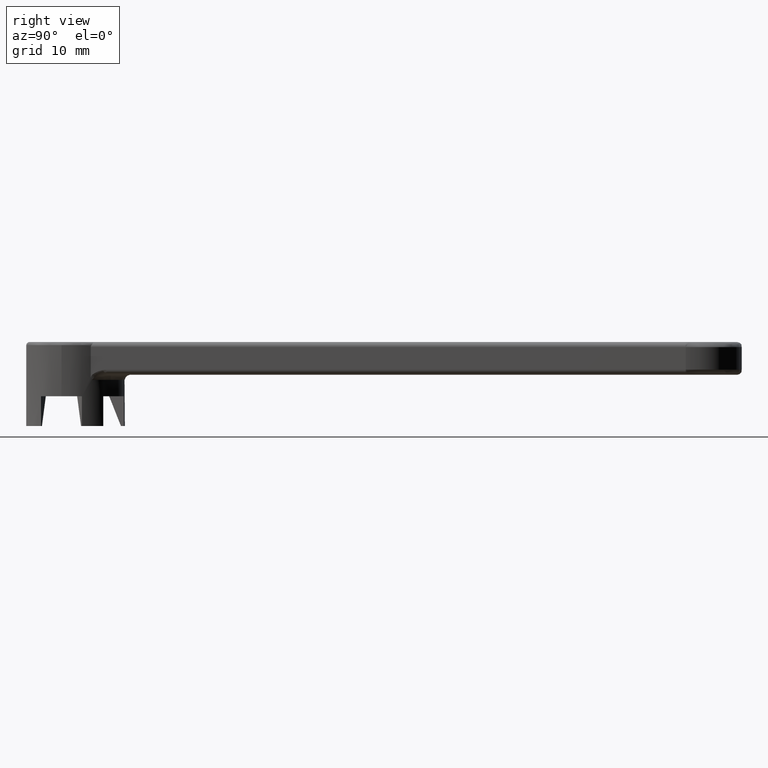
[diagram: clean part render]
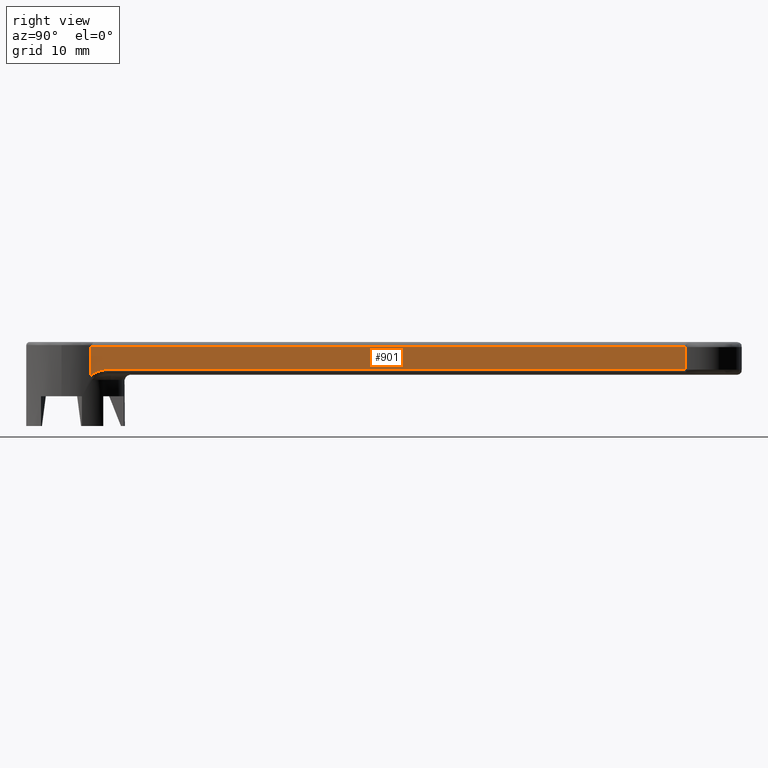
[diagram: same view with one face highlighted and labeled with its STEP entity id]
A machine part, right view. The second image highlights one B-rep face of the part: STEP entity #901.
In plain terms, the highlighted planar face has unit normal (1, -0, 0).
Its self-contained STEP definition (entity closure, byte-faithful):
#42 = AXIS2_PLACEMENT_3D ( 'NONE', #447, #2230, #1518 ) ;
#135 = CARTESIAN_POINT ( 'NONE',  ( 5.499999999999999100, 2.971899750173791600, -3.225746385650876100 ) ) ;
#142 = CARTESIAN_POINT ( 'NONE',  ( 5.499999999999999100, 3.870268057246143600, -2.769236944377345900 ) ) ;
#144 = LINE ( 'NONE', #1535, #1511 ) ;
#237 = LINE ( 'NONE', #1584, #1593 ) ;
#325 = CARTESIAN_POINT ( 'NONE',  ( 5.499999999999999100, 3.132822472471272800, -3.099189326723253300 ) ) ;
#335 = CARTESIAN_POINT ( 'NONE',  ( 5.500000000000000000, 4.313981380150326400, -2.700000620779431600 ) ) ;
#391 = ORIENTED_EDGE ( 'NONE', *, *, #1495, .T. ) ;
#439 = VERTEX_POINT ( 'NONE', #2024 ) ;
#447 = CARTESIAN_POINT ( 'NONE',  ( 5.500000000000000000, 2.861817603999999600, -0.5000000000000000000 ) ) ;
#499 = CARTESIAN_POINT ( 'NONE',  ( 5.500000000000001800, 3.175781490898199600, -3.070089029292179600 ) ) ;
#628 = VECTOR ( 'NONE', #1896, 1000.000000000000000 ) ;
#661 = DIRECTION ( 'NONE',  ( 0.0000000000000000000, 1.000000000000000000, 0.0000000000000000000 ) ) ;
#679 = CARTESIAN_POINT ( 'NONE',  ( 5.500000000000000900, 3.252593791771146000, -3.020476666577718700 ) ) ;
#790 = CARTESIAN_POINT ( 'NONE',  ( 5.500000000000000000, 60.94382609499999100, -2.700000000405793800 ) ) ;
#857 = CARTESIAN_POINT ( 'NONE',  ( 5.500000000066549400, 60.94382609499998400, -0.4999999997836505100 ) ) ;
#869 = CARTESIAN_POINT ( 'NONE',  ( 5.500000000000001800, 3.465663743224157900, -2.911836623620964300 ) ) ;
#881 = EDGE_CURVE ( 'NONE', #439, #922, #989, .T. ) ;
#890 = ORIENTED_EDGE ( 'NONE', *, *, #881, .T. ) ;
#901 = ADVANCED_FACE ( 'NONE', ( #937 ), #1384, .T. ) ;
#922 = VERTEX_POINT ( 'NONE', #1248 ) ;
#937 = FACE_OUTER_BOUND ( 'NONE', #2027, .T. ) ;
#979 = VERTEX_POINT ( 'NONE', #857 ) ;
#989 = LINE ( 'NONE', #2311, #628 ) ;
#1045 = CARTESIAN_POINT ( 'NONE',  ( 5.500000000000001800, 3.554501601210760900, -2.875023668915525700 ) ) ;
#1225 = CARTESIAN_POINT ( 'NONE',  ( 5.500000000000000000, 3.728641042429239800, -2.808877991717249900 ) ) ;
#1226 = ORIENTED_EDGE ( 'NONE', *, *, #1862, .T. ) ;
#1242 = DIRECTION ( 'NONE',  ( 0.0000000000000000000, -1.000000000000000000, 0.0000000000000000000 ) ) ;
#1248 = CARTESIAN_POINT ( 'NONE',  ( 5.500000012810048100, 2.861817517616057000, -3.355874765797169700 ) ) ;
#1379 = VECTOR ( 'NONE', #2119, 1000.000000000000000 ) ;
#1384 = PLANE ( 'NONE',  #42 ) ;
#1386 = CARTESIAN_POINT ( 'NONE',  ( 5.500000000000000900, 3.075667122679209200, -3.140593786056405700 ) ) ;
#1394 = CARTESIAN_POINT ( 'NONE',  ( 5.499999999999999100, 4.166903132579965300, -2.713848133810769600 ) ) ;
#1396 = CARTESIAN_POINT ( 'NONE',  ( 5.500000000000000000, 60.94382609499999100, -1.936504943500000100 ) ) ;
#1430 = LINE ( 'NONE', #1396, #1379 ) ;
#1495 = EDGE_CURVE ( 'NONE', #1718, #979, #1430, .T. ) ;
#1511 = VECTOR ( 'NONE', #661, 1000.000000000000000 ) ;
#1518 = DIRECTION ( 'NONE',  ( 0.0000000000000000000, 0.0000000000000000000, -1.000000000000000000 ) ) ;
#1535 = CARTESIAN_POINT ( 'NONE',  ( 5.500000000000000000, 31.90282184949999700, -2.700000000541058500 ) ) ;
#1557 = CARTESIAN_POINT ( 'NONE',  ( 5.500000000000000000, 3.158447264569161500, -3.081695667108492300 ) ) ;
#1567 = CARTESIAN_POINT ( 'NONE',  ( 5.499999999997800000, 4.459820490492979200, -2.700000000270550900 ) ) ;
#1569 = B_SPLINE_CURVE_WITH_KNOTS ( 'NONE', 3,
 ( #1738, #2275, #135, #1386, #325, #1557, #499, #1745, #679, #1926, #869, #2118, #1045, #2284, #1225, #142, #1394, #335, #1567 ),
 .UNSPECIFIED., .F., .F.,
 ( 4, 1, 1, 1, 2, 2, 1, 1, 2, 2, 2, 4 ),
 ( 0.0000000000000000000, 0.1249999999999960300, 0.1874999999999943100, 0.2187499999999934800, 0.2343749999999932300, 0.2499999999999930100, 0.3749999999999931700, 0.4374999999999936700, 0.4687499999999938900, 0.4999999999999941200, 0.7499999999999970000, 1.000000000000000000 ),
 .UNSPECIFIED. ) ;
#1584 = CARTESIAN_POINT ( 'NONE',  ( 5.500000000000001800, 31.72857582399999600, -0.4999999998974479200 ) ) ;
#1593 = VECTOR ( 'NONE', #1242, 1000.000000000000000 ) ;
#1684 = VERTEX_POINT ( 'NONE', #1845 ) ;
#1718 = VERTEX_POINT ( 'NONE', #790 ) ;
#1725 = EDGE_CURVE ( 'NONE', #1684, #1718, #144, .T. ) ;
#1738 = CARTESIAN_POINT ( 'NONE',  ( 5.500000012810048100, 2.861817517616057000, -3.355874765797169700 ) ) ;
#1745 = CARTESIAN_POINT ( 'NONE',  ( 5.500000000000000000, 3.186104573729374500, -3.063327272839713600 ) ) ;
#1747 = ORIENTED_EDGE ( 'NONE', *, *, #1725, .T. ) ;
#1782 = EDGE_CURVE ( 'NONE', #922, #1684, #1569, .T. ) ;
#1845 = CARTESIAN_POINT ( 'NONE',  ( 5.499999999997800000, 4.459820490492979200, -2.700000000270550900 ) ) ;
#1862 = EDGE_CURVE ( 'NONE', #979, #439, #237, .T. ) ;
#1896 = DIRECTION ( 'NONE',  ( -0.0000000000000000000, -0.0000000000000000000, -1.000000000000000000 ) ) ;
#1926 = CARTESIAN_POINT ( 'NONE',  ( 5.500000000000000000, 3.346605228422331500, -2.967210762517783300 ) ) ;
#2024 = CARTESIAN_POINT ( 'NONE',  ( 5.500000000161539200, 2.861817603629540400, -0.5000000003859050900 ) ) ;
#2027 = EDGE_LOOP ( 'NONE', ( #2036, #1747, #391, #1226, #890 ) ) ;
#2036 = ORIENTED_EDGE ( 'NONE', *, *, #1782, .T. ) ;
#2118 = CARTESIAN_POINT ( 'NONE',  ( 5.500000000000000900, 3.518698500719678300, -2.889555438916564500 ) ) ;
#2119 = DIRECTION ( 'NONE',  ( -0.0000000000000000000, -0.0000000000000000000, 1.000000000000000000 ) ) ;
#2230 = DIRECTION ( 'NONE',  ( 1.000000000000000000, -0.0000000000000000000, 0.0000000000000000000 ) ) ;
#2275 = CARTESIAN_POINT ( 'NONE',  ( 5.500000000000000900, 2.901030563018359500, -3.302752066894425500 ) ) ;
#2284 = CARTESIAN_POINT ( 'NONE',  ( 5.500000000000000000, 3.573766289007159500, -2.867487608229834600 ) ) ;
#2311 = CARTESIAN_POINT ( 'NONE',  ( 5.500000000646963400, 2.861817603007467800, -4.249999999999999100 ) ) ;